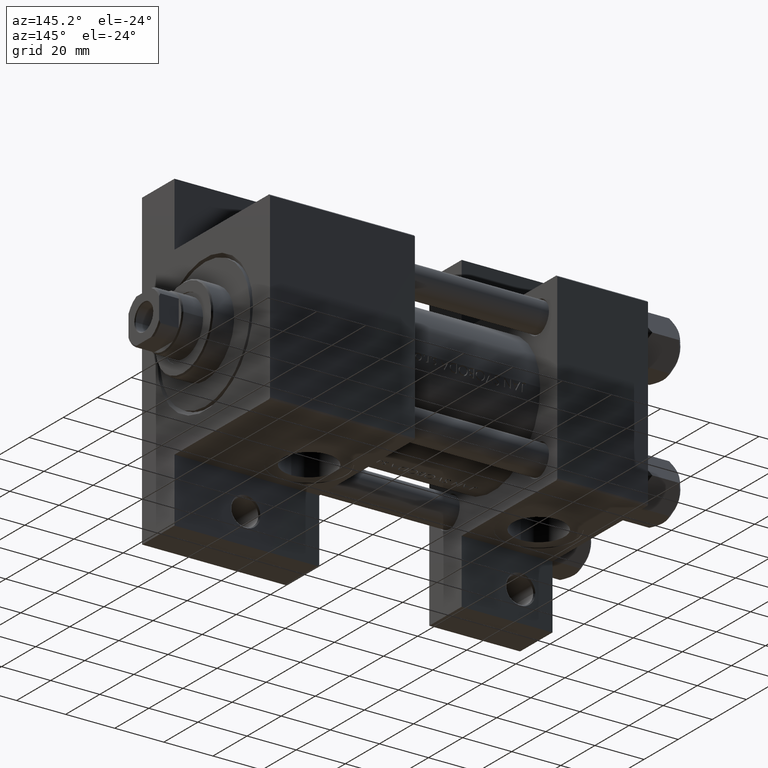
[diagram: clean part render]
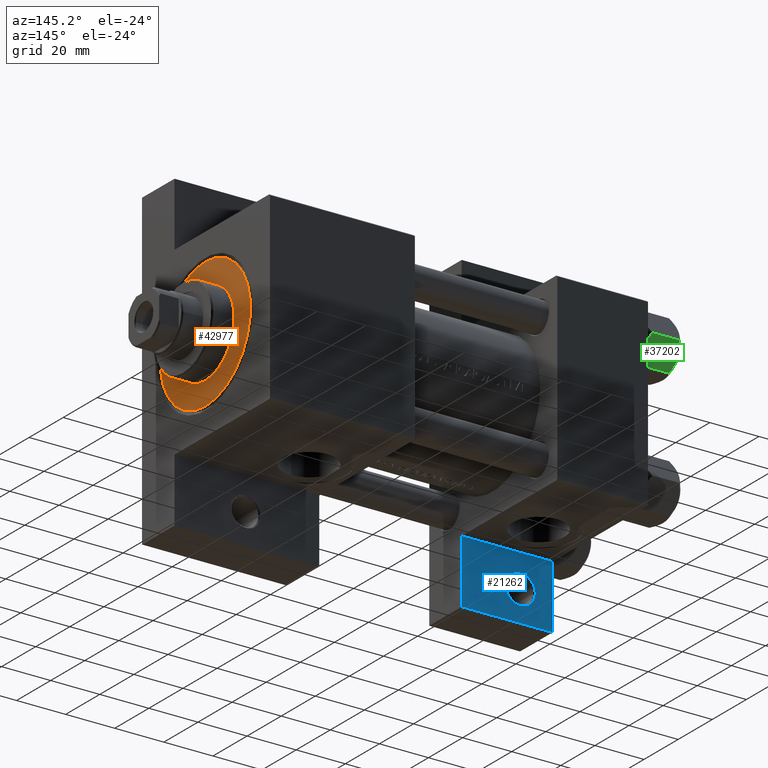
[diagram: same view with three faces highlighted in distinct colors, each labeled with its STEP entity id]
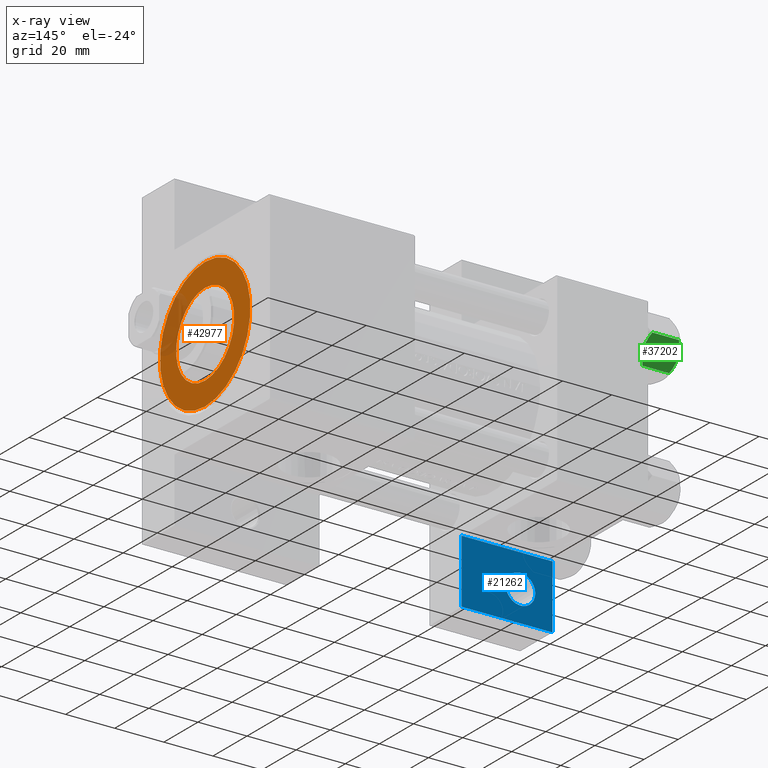
[diagram: x-ray of the same camera — body ghosted, the three highlighted faces saturated]
A machine part, auxiliary view with three faces highlighted in distinct colors.
The next image is the same camera in x-ray (body ghosted, the three faces saturated) — at least one of them is partly hidden behind the body in this view.
Their STEP definitions:

[orange] entity #42977 — the highlighted planar face has unit normal (1, 0, 0).
#166 = VERTEX_POINT ( 'NONE', #35698 ) ;
#2026 = DIRECTION ( 'NONE',  ( 1.000000000000000000, 0.000000000000000000, 0.000000000000000000 ) ) ;
#2265 = DIRECTION ( 'NONE',  ( 0.000000000000000000, 0.000000000000000000, 1.000000000000000000 ) ) ;
#3316 = DIRECTION ( 'NONE',  ( 0.000000000000000000, 0.000000000000000000, 1.000000000000000000 ) ) ;
#5544 = CARTESIAN_POINT ( 'NONE',  ( 26.50000000000000355, 3.245314017740486554E-15, 28.69999999999999929 ) ) ;
#6127 = DIRECTION ( 'NONE',  ( 1.000000000000000000, 0.000000000000000000, 0.000000000000000000 ) ) ;
#6366 = CARTESIAN_POINT ( 'NONE',  ( 0.000000000000000000, 0.000000000000000000, 28.69999999999999929 ) ) ;
#7176 = ORIENTED_EDGE ( 'NONE', *, *, #17947, .T. ) ;
#7219 = CIRCLE ( 'NONE', #25633, 17.00000000000000000 ) ;
#9659 = DIRECTION ( 'NONE',  ( 0.000000000000000000, 0.000000000000000000, 1.000000000000000000 ) ) ;
#13028 = FACE_BOUND ( 'NONE', #21249, .T. ) ;
#13742 = CARTESIAN_POINT ( 'NONE',  ( 0.000000000000000000, 0.000000000000000000, 28.69999999999999929 ) ) ;
#13985 = AXIS2_PLACEMENT_3D ( 'NONE', #28739, #24893, #24413 ) ;
#14426 = EDGE_CURVE ( 'NONE', #25257, #41278, #18557, .T. ) ;
#14852 = CIRCLE ( 'NONE', #17939, 17.00000000000000000 ) ;
#16687 = ORIENTED_EDGE ( 'NONE', *, *, #14426, .T. ) ;
#17939 = AXIS2_PLACEMENT_3D ( 'NONE', #20545, #2265, #2026 ) ;
#17947 = EDGE_CURVE ( 'NONE', #41278, #25257, #34713, .T. ) ;
#18557 = CIRCLE ( 'NONE', #32406, 26.50000000000000355 ) ;
#18762 = ORIENTED_EDGE ( 'NONE', *, *, #23054, .F. ) ;
#20545 = CARTESIAN_POINT ( 'NONE',  ( 0.000000000000000000, 0.000000000000000000, 28.69999999999999929 ) ) ;
#21249 = EDGE_LOOP ( 'NONE', ( #18762, #32615 ) ) ;
#23054 = EDGE_CURVE ( 'NONE', #166, #43559, #7219, .T. ) ;
#23805 = AXIS2_PLACEMENT_3D ( 'NONE', #13742, #9659, #27688 ) ;
#24074 = FACE_OUTER_BOUND ( 'NONE', #33434, .T. ) ;
#24413 = DIRECTION ( 'NONE',  ( 1.000000000000000000, 0.000000000000000000, 0.000000000000000000 ) ) ;
#24893 = DIRECTION ( 'NONE',  ( 0.000000000000000000, 0.000000000000000000, 1.000000000000000000 ) ) ;
#25257 = VERTEX_POINT ( 'NONE', #32518 ) ;
#25633 = AXIS2_PLACEMENT_3D ( 'NONE', #6366, #46995, #6127 ) ;
#25890 = DIRECTION ( 'NONE',  ( 1.000000000000000000, 0.000000000000000000, 0.000000000000000000 ) ) ;
#27688 = DIRECTION ( 'NONE',  ( 1.000000000000000000, 0.000000000000000000, -0.000000000000000000 ) ) ;
#28739 = CARTESIAN_POINT ( 'NONE',  ( 0.000000000000000000, 0.000000000000000000, 28.69999999999999929 ) ) ;
#31098 = CARTESIAN_POINT ( 'NONE',  ( 17.00000000000000000, 2.081899558550500280E-15, 28.69999999999999929 ) ) ;
#32406 = AXIS2_PLACEMENT_3D ( 'NONE', #39637, #3316, #25890 ) ;
#32518 = CARTESIAN_POINT ( 'NONE',  ( -26.50000000000000355, 0.000000000000000000, 28.69999999999999929 ) ) ;
#32615 = ORIENTED_EDGE ( 'NONE', *, *, #47593, .F. ) ;
#33434 = EDGE_LOOP ( 'NONE', ( #16687, #7176 ) ) ;
#34713 = CIRCLE ( 'NONE', #13985, 26.50000000000000355 ) ;
#35633 = PLANE ( 'NONE',  #23805 ) ;
#35698 = CARTESIAN_POINT ( 'NONE',  ( -17.00000000000000000, 0.000000000000000000, 28.69999999999999929 ) ) ;
#39637 = CARTESIAN_POINT ( 'NONE',  ( 0.000000000000000000, 0.000000000000000000, 28.69999999999999929 ) ) ;
#41278 = VERTEX_POINT ( 'NONE', #5544 ) ;
#42977 = ADVANCED_FACE ( 'NONE', ( #13028, #24074 ), #35633, .T. ) ;
#43559 = VERTEX_POINT ( 'NONE', #31098 ) ;
#46995 = DIRECTION ( 'NONE',  ( 0.000000000000000000, 0.000000000000000000, 1.000000000000000000 ) ) ;
#47593 = EDGE_CURVE ( 'NONE', #43559, #166, #14852, .T. ) ;

[blue] entity #21262 — the highlighted planar face has unit normal (0, -1, 0).
#417 = ORIENTED_EDGE ( 'NONE', *, *, #12910, .T. ) ;
#1920 = LINE ( 'NONE', #45688, #46640 ) ;
#2715 = CIRCLE ( 'NONE', #27280, 5.999500000000050015 ) ;
#4067 = FACE_OUTER_BOUND ( 'NONE', #44679, .T. ) ;
#5682 = EDGE_CURVE ( 'NONE', #14641, #33018, #11435, .T. ) ;
#6373 = VERTEX_POINT ( 'NONE', #10753 ) ;
#7945 = CARTESIAN_POINT ( 'NONE',  ( 37.00000000000000711, 37.50000000000000711, -18.50000000000000355 ) ) ;
#8516 = ORIENTED_EDGE ( 'NONE', *, *, #31305, .T. ) ;
#10753 = CARTESIAN_POINT ( 'NONE',  ( 0.000000000000000000, 37.49999999999999289, -18.49999999999999645 ) ) ;
#10866 = AXIS2_PLACEMENT_3D ( 'NONE', #18286, #32965, #39695 ) ;
#10969 = CARTESIAN_POINT ( 'NONE',  ( 8.470280871287256020E-15, 37.50000000000002842, -18.49999999999999645 ) ) ;
#11435 = LINE ( 'NONE', #26095, #47557 ) ;
#12827 = EDGE_LOOP ( 'NONE', ( #28434, #41394 ) ) ;
#12910 = EDGE_CURVE ( 'NONE', #33018, #6373, #14559, .T. ) ;
#14039 = CARTESIAN_POINT ( 'NONE',  ( 37.00000000000001421, 63.50000000000000000, -18.50000000000000355 ) ) ;
#14219 = EDGE_CURVE ( 'NONE', #43398, #33344, #25441, .T. ) ;
#14559 = LINE ( 'NONE', #35734, #43095 ) ;
#14641 = VERTEX_POINT ( 'NONE', #14039 ) ;
#15727 = VERTEX_POINT ( 'NONE', #7945 ) ;
#18286 = CARTESIAN_POINT ( 'NONE',  ( 12.99999999999999822, 50.99999999999996447, -18.50000000000000000 ) ) ;
#18746 = DIRECTION ( 'NONE',  ( 0.000000000000000000, 0.000000000000000000, -1.000000000000000000 ) ) ;
#19628 = DIRECTION ( 'NONE',  ( -1.000000000000000000, 0.000000000000000000, -0.000000000000000000 ) ) ;
#21262 = ADVANCED_FACE ( 'NONE', ( #46885, #4067 ), #30691, .F. ) ;
#21462 = CARTESIAN_POINT ( 'NONE',  ( 12.99999999999999822, 50.99999999999996447, -18.50000000000000000 ) ) ;
#24341 = DIRECTION ( 'NONE',  ( 0.000000000000000000, 0.000000000000000000, -1.000000000000000000 ) ) ;
#24582 = DIRECTION ( 'NONE',  ( -1.000000000000000000, 0.000000000000000000, 0.000000000000000000 ) ) ;
#25441 = CIRCLE ( 'NONE', #10866, 5.999500000000050015 ) ;
#25532 = EDGE_CURVE ( 'NONE', #6373, #15727, #37417, .T. ) ;
#26093 = DIRECTION ( 'NONE',  ( 1.000000000000000000, -3.750753461571474945E-16, 0.000000000000000000 ) ) ;
#26095 = CARTESIAN_POINT ( 'NONE',  ( 1.595073532467135441E-14, 63.50000000000000000, -18.50000000000000355 ) ) ;
#26969 = EDGE_CURVE ( 'NONE', #33344, #43398, #2715, .T. ) ;
#27280 = AXIS2_PLACEMENT_3D ( 'NONE', #21462, #24341, #24582 ) ;
#28030 = CARTESIAN_POINT ( 'NONE',  ( 7.000499999999947320, 50.99999999999996447, -18.50000000000000000 ) ) ;
#28434 = ORIENTED_EDGE ( 'NONE', *, *, #26969, .T. ) ;
#30691 = PLANE ( 'NONE',  #32637 ) ;
#31305 = EDGE_CURVE ( 'NONE', #15727, #14641, #1920, .T. ) ;
#31341 = CARTESIAN_POINT ( 'NONE',  ( 1.595073532467135441E-14, 63.50000000000000000, -18.50000000000000355 ) ) ;
#31507 = DIRECTION ( 'NONE',  ( 2.668805347656626678E-16, 1.000000000000000000, 0.000000000000000000 ) ) ;
#31600 = ORIENTED_EDGE ( 'NONE', *, *, #5682, .T. ) ;
#31658 = ORIENTED_EDGE ( 'NONE', *, *, #25532, .T. ) ;
#32637 = AXIS2_PLACEMENT_3D ( 'NONE', #41982, #18746, #19628 ) ;
#32965 = DIRECTION ( 'NONE',  ( 0.000000000000000000, 0.000000000000000000, -1.000000000000000000 ) ) ;
#33018 = VERTEX_POINT ( 'NONE', #31341 ) ;
#33344 = VERTEX_POINT ( 'NONE', #39683 ) ;
#35734 = CARTESIAN_POINT ( 'NONE',  ( 1.595073532467135757E-14, 63.50000000000001421, -18.50000000000000355 ) ) ;
#37417 = LINE ( 'NONE', #10969, #41843 ) ;
#39683 = CARTESIAN_POINT ( 'NONE',  ( 18.99950000000004735, 50.99999999999996447, -18.50000000000000000 ) ) ;
#39695 = DIRECTION ( 'NONE',  ( -1.000000000000000000, 0.000000000000000000, 0.000000000000000000 ) ) ;
#40773 = DIRECTION ( 'NONE',  ( -1.000000000000000000, 0.000000000000000000, 0.000000000000000000 ) ) ;
#41394 = ORIENTED_EDGE ( 'NONE', *, *, #14219, .T. ) ;
#41843 = VECTOR ( 'NONE', #26093, 1000.000000000000000 ) ;
#41982 = CARTESIAN_POINT ( 'NONE',  ( 0.000000000000000000, 0.000000000000000000, -18.50000000000000000 ) ) ;
#43095 = VECTOR ( 'NONE', #43408, 1000.000000000000000 ) ;
#43398 = VERTEX_POINT ( 'NONE', #28030 ) ;
#43408 = DIRECTION ( 'NONE',  ( -2.877097866686192789E-16, -1.000000000000000000, 0.000000000000000000 ) ) ;
#44679 = EDGE_LOOP ( 'NONE', ( #417, #31658, #8516, #31600 ) ) ;
#45688 = CARTESIAN_POINT ( 'NONE',  ( 37.00000000000001421, 63.50000000000001421, -18.50000000000000355 ) ) ;
#46640 = VECTOR ( 'NONE', #31507, 1000.000000000000000 ) ;
#46885 = FACE_BOUND ( 'NONE', #12827, .T. ) ;
#47557 = VECTOR ( 'NONE', #40773, 1000.000000000000000 ) ;

[green] entity #37202 — the highlighted planar face has unit normal (-0, -0.866, 0.5).
#420 = CARTESIAN_POINT ( 'NONE',  ( 8.715000000000003411, 5.031607595987588333, 0.000000000000000000 ) ) ;
#490 = PLANE ( 'NONE',  #29139 ) ;
#516 = EDGE_CURVE ( 'NONE', #37339, #22503, #12977, .T. ) ;
#2238 = VERTEX_POINT ( 'NONE', #3871 ) ;
#3289 = CARTESIAN_POINT ( 'NONE',  ( 8.969430103550381617, 4.590921729663312689, 1.314595134138673732E-15 ) ) ;
#3789 = CARTESIAN_POINT ( 'NONE',  ( 10.69662495661650503, 1.599332489581332339, -13.28854452935654962 ) ) ;
#3798 = CARTESIAN_POINT ( 'NONE',  ( 8.209704053696574633, 5.906805847843726198, 1.265467223197924312E-15 ) ) ;
#3865 = LINE ( 'NONE', #10391, #36028 ) ;
#3871 = CARTESIAN_POINT ( 'NONE',  ( 11.62000000000000099, -1.795242522838921761E-15, -12.44321519197518455 ) ) ;
#4072 = DIRECTION ( 'NONE',  ( -0.000000000000000000, -0.000000000000000000, 1.000000000000000000 ) ) ;
#6660 = CARTESIAN_POINT ( 'NONE',  ( 10.69859855102501278, 1.595914123792261829, -0.7141438259524660603 ) ) ;
#7320 = VERTEX_POINT ( 'NONE', #17565 ) ;
#7403 = CARTESIAN_POINT ( 'NONE',  ( 8.715000000000003411, 5.031607595987588333, -14.00000000000000000 ) ) ;
#7487 = DIRECTION ( 'NONE',  ( 0.4999999999999998335, -0.8660254037844387076, 0.000000000000000000 ) ) ;
#8490 = CARTESIAN_POINT ( 'NONE',  ( 11.62000000000000099, -1.607967606633101042E-15, -1.556784808024815669 ) ) ;
#10391 = CARTESIAN_POINT ( 'NONE',  ( 11.62000000000000099, -1.813166800014576593E-15, -14.00000000000000000 ) ) ;
#10885 = EDGE_LOOP ( 'NONE', ( #17124, #27381, #31416, #30045, #29187, #41946 ) ) ;
#12977 = B_SPLINE_CURVE_WITH_KNOTS ( 'NONE', 3,
 ( #420, #3798, #25904, #40120, #22552, #40583 ),
 .UNSPECIFIED., .F., .F.,
 ( 4, 2, 4 ),
 ( 0.006022845781655587240, 0.009013049135303635023, 0.01200325248895168367 ),
 .UNSPECIFIED. ) ;
#13405 = CARTESIAN_POINT ( 'NONE',  ( 9.974696630283190757, 2.849749030213790224, -0.3002673809867378307 ) ) ;
#15136 = B_SPLINE_CURVE_WITH_KNOTS ( 'NONE', 3,
 ( #7403, #39641, #40576, #3789, #33143, #36513 ),
 .UNSPECIFIED., .F., .F.,
 ( 4, 2, 4 ),
 ( 0.006022845781655591577, 0.009013049135303638493, 0.01200325248895168714 ),
 .UNSPECIFIED. ) ;
#15253 = EDGE_CURVE ( 'NONE', #19944, #2238, #15136, .T. ) ;
#17124 = ORIENTED_EDGE ( 'NONE', *, *, #41511, .F. ) ;
#17565 = CARTESIAN_POINT ( 'NONE',  ( 5.810000000000000497, 10.06321519197518022, -12.44321519197518278 ) ) ;
#17596 = EDGE_CURVE ( 'NONE', #7320, #22503, #33186, .T. ) ;
#18545 = DIRECTION ( 'NONE',  ( -0.000000000000000000, -0.000000000000000000, 1.000000000000000000 ) ) ;
#18550 = CARTESIAN_POINT ( 'NONE',  ( 5.810000000000000497, 10.06321519197518022, -14.00000000000000000 ) ) ;
#19944 = VERTEX_POINT ( 'NONE', #41663 ) ;
#20818 = CARTESIAN_POINT ( 'NONE',  ( 5.810000000000000497, 10.06321519197518022, -12.44321519197518278 ) ) ;
#21056 = CARTESIAN_POINT ( 'NONE',  ( 8.202333004087902779, 5.919572880271052995, -13.96005881939309212 ) ) ;
#21531 = CARTESIAN_POINT ( 'NONE',  ( 8.460569896449619876, 5.472293462311864864, -14.00000000000000355 ) ) ;
#22489 = VECTOR ( 'NONE', #4072, 1000.000000000000000 ) ;
#22503 = VERTEX_POINT ( 'NONE', #29067 ) ;
#22552 = CARTESIAN_POINT ( 'NONE',  ( 6.265018354709775750, 9.275100283241453525, -1.101766453314955152 ) ) ;
#25904 = CARTESIAN_POINT ( 'NONE',  ( 7.713000053756308816, 6.767122412062953174, -0.1545239700039844066 ) ) ;
#26794 = B_SPLINE_CURVE_WITH_KNOTS ( 'NONE', 3,
 ( #20818, #28255, #39571, #35738, #31886, #21056, #21531, #32125 ),
 .UNSPECIFIED., .F., .F.,
 ( 4, 2, 2, 4 ),
 ( 2.544312114902182352E-07, 0.003011550106433540791, 0.004517197944044566184, 0.006022845781655591577 ),
 .UNSPECIFIED. ) ;
#27381 = ORIENTED_EDGE ( 'NONE', *, *, #17596, .T. ) ;
#28060 = CARTESIAN_POINT ( 'NONE',  ( 8.715000000000003411, 5.031607595987588333, 0.000000000000000000 ) ) ;
#28255 = CARTESIAN_POINT ( 'NONE',  ( 6.265545725125283738, 9.274186850887380373, -12.89876091710046602 ) ) ;
#28535 = CARTESIAN_POINT ( 'NONE',  ( 9.729165168613654657, 3.275021996682081493, -0.1903979688073423326 ) ) ;
#29067 = CARTESIAN_POINT ( 'NONE',  ( 5.810000000000000497, 10.06321519197518022, -1.556784808024817890 ) ) ;
#29139 = AXIS2_PLACEMENT_3D ( 'NONE', #18550, #30312, #7487 ) ;
#29187 = ORIENTED_EDGE ( 'NONE', *, *, #39180, .F. ) ;
#30045 = ORIENTED_EDGE ( 'NONE', *, *, #39406, .F. ) ;
#30312 = DIRECTION ( 'NONE',  ( -0.8660254037844387076, -0.4999999999999998335, 0.000000000000000000 ) ) ;
#30814 = VERTEX_POINT ( 'NONE', #8490 ) ;
#31416 = ORIENTED_EDGE ( 'NONE', *, *, #516, .F. ) ;
#31886 = CARTESIAN_POINT ( 'NONE',  ( 7.700834831386346835, 6.788193195293095172, -13.80960203119265728 ) ) ;
#32125 = CARTESIAN_POINT ( 'NONE',  ( 8.715000000000003411, 5.031607595987588333, -14.00000000000000000 ) ) ;
#32995 = FACE_OUTER_BOUND ( 'NONE', #10885, .T. ) ;
#33143 = CARTESIAN_POINT ( 'NONE',  ( 11.16498164529022574, 0.7881149087337280257, -12.89823354668504862 ) ) ;
#33186 = LINE ( 'NONE', #40378, #22489 ) ;
#34411 = CARTESIAN_POINT ( 'NONE',  ( 8.715000000000003411, 5.031607595987588333, 0.000000000000000000 ) ) ;
#35738 = CARTESIAN_POINT ( 'NONE',  ( 7.455303369716809847, 7.213466161761385997, -13.69973261901326289 ) ) ;
#35774 = CARTESIAN_POINT ( 'NONE',  ( 11.16445427487472131, 0.7890283410877951820, -1.101239082899533317 ) ) ;
#36028 = VECTOR ( 'NONE', #18545, 1000.000000000000000 ) ;
#36253 = CARTESIAN_POINT ( 'NONE',  ( 9.227666995912102266, 4.143642311704122783, -0.03994118060690848154 ) ) ;
#36513 = CARTESIAN_POINT ( 'NONE',  ( 11.62000000000000099, -1.795242522838921761E-15, -12.44321519197518455 ) ) ;
#37202 = ADVANCED_FACE ( 'NONE', ( #32995 ), #490, .F. ) ;
#37339 = VERTEX_POINT ( 'NONE', #34411 ) ;
#37352 = B_SPLINE_CURVE_WITH_KNOTS ( 'NONE', 3,
 ( #42972, #35774, #6660, #13405, #28535, #36253, #3289, #28060 ),
 .UNSPECIFIED., .F., .F.,
 ( 4, 2, 2, 4 ),
 ( 2.544312114904956385E-07, 0.003011550106433539924, 0.004517197944044563582, 0.006022845781655587240 ),
 .UNSPECIFIED. ) ;
#39180 = EDGE_CURVE ( 'NONE', #2238, #30814, #3865, .T. ) ;
#39406 = EDGE_CURVE ( 'NONE', #30814, #37339, #37352, .T. ) ;
#39571 = CARTESIAN_POINT ( 'NONE',  ( 6.731401448974989599, 8.467301068182914392, -13.28585617404753272 ) ) ;
#39641 = CARTESIAN_POINT ( 'NONE',  ( 9.220295946303432189, 4.156409344131451356, -14.00000000000000178 ) ) ;
#40120 = CARTESIAN_POINT ( 'NONE',  ( 6.733375043383499126, 8.463882702393842550, -0.7114554706434507159 ) ) ;
#40378 = CARTESIAN_POINT ( 'NONE',  ( 5.810000000000000497, 10.06321519197518022, -14.00000000000000000 ) ) ;
#40576 = CARTESIAN_POINT ( 'NONE',  ( 9.716999946243698005, 3.296092779912227044, -13.84547602999601779 ) ) ;
#40583 = CARTESIAN_POINT ( 'NONE',  ( 5.810000000000000497, 10.06321519197518022, -1.556784808024817890 ) ) ;
#41511 = EDGE_CURVE ( 'NONE', #7320, #19944, #26794, .T. ) ;
#41663 = CARTESIAN_POINT ( 'NONE',  ( 8.715000000000003411, 5.031607595987588333, -14.00000000000000000 ) ) ;
#41946 = ORIENTED_EDGE ( 'NONE', *, *, #15253, .F. ) ;
#42972 = CARTESIAN_POINT ( 'NONE',  ( 11.62000000000000099, -1.607967606633101042E-15, -1.556784808024815669 ) ) ;